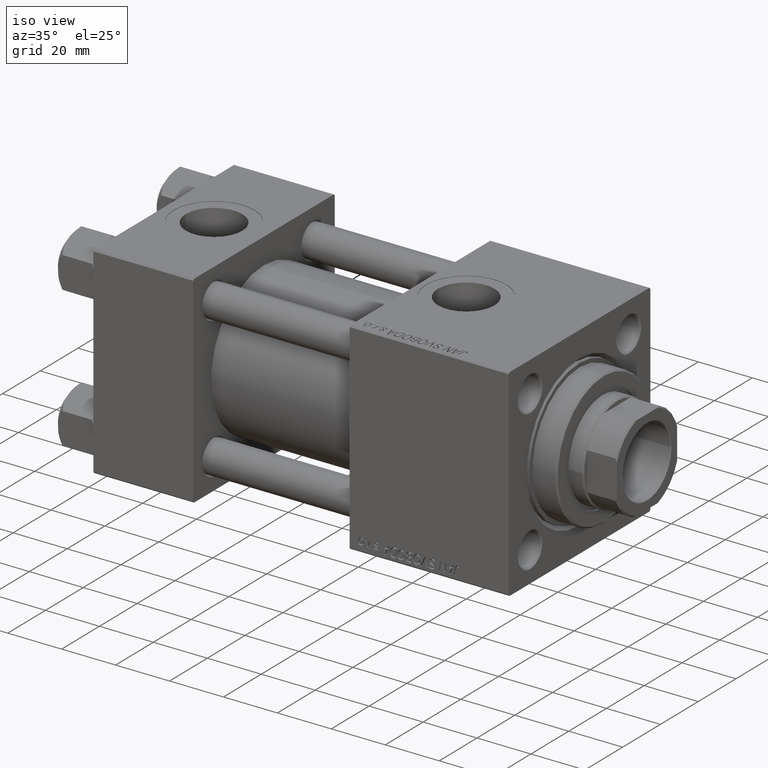
[diagram: clean part render]
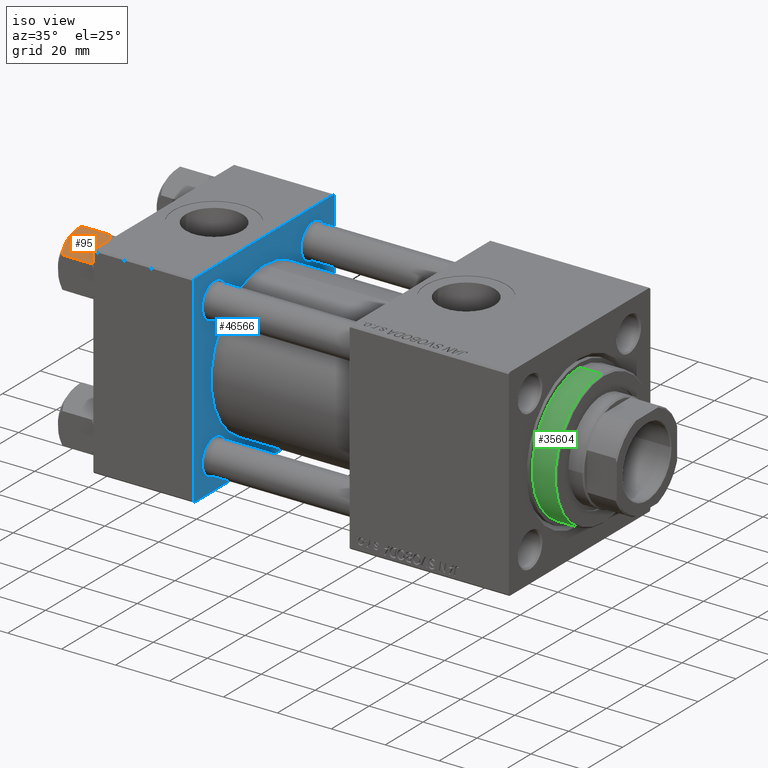
[diagram: same view with three faces highlighted in distinct colors, each labeled with its STEP entity id]
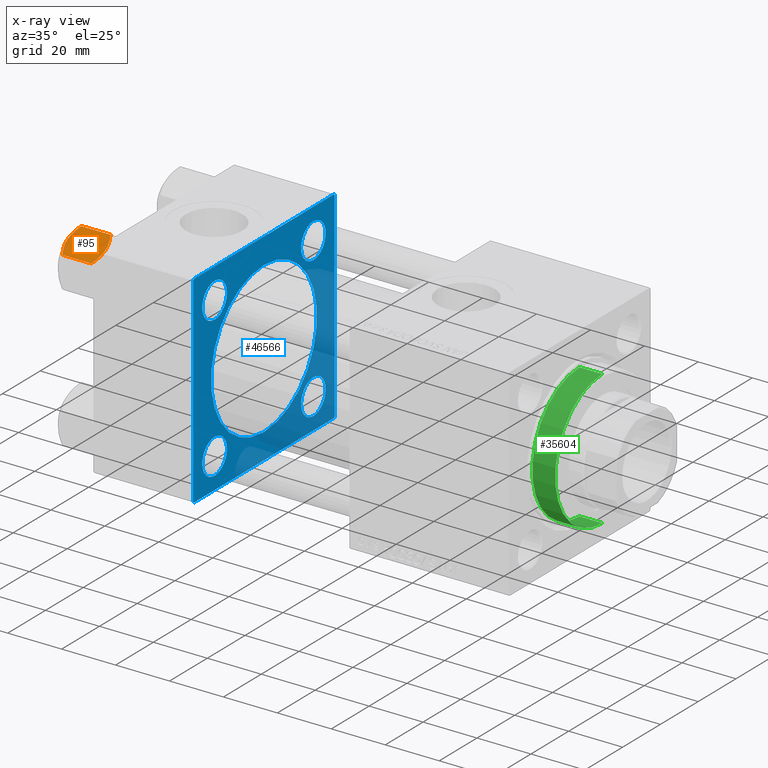
[diagram: x-ray of the same camera — body ghosted, the three highlighted faces saturated]
A machine part, iso view with three faces highlighted in distinct colors.
The next image is the same camera in x-ray (body ghosted, the three faces saturated) — at least one of them is partly hidden behind the body in this view.
Their STEP definitions:

[orange] entity #95 — the highlighted planar face has unit normal (0, 0.5, -0.866).
#95 = ADVANCED_FACE ( 'NONE', ( #42880 ), #8087, .F. ) ;
#1669 = CARTESIAN_POINT ( 'NONE',  ( -8.460569896449618099, 5.472293462311865753, 3.939644352451667145E-15 ) ) ;
#1869 = DIRECTION ( 'NONE',  ( -0.000000000000000000, -0.000000000000000000, 1.000000000000000000 ) ) ;
#2728 = B_SPLINE_CURVE_WITH_KNOTS ( 'NONE', 3,
 ( #27646, #31964, #19768, #43882, #4533, #47681, #46671, #20537 ),
 .UNSPECIFIED., .F., .F.,
 ( 4, 2, 2, 4 ),
 ( 2.544312114905218436E-07, 0.003011550106433537755, 0.004517197944044560980, 0.006022845781655582903 ),
 .UNSPECIFIED. ) ;
#2858 = VERTEX_POINT ( 'NONE', #9957 ) ;
#4380 = ORIENTED_EDGE ( 'NONE', *, *, #44015, .T. ) ;
#4533 = CARTESIAN_POINT ( 'NONE',  ( -9.729165168613649328, 3.275021996682086822, -13.80960203119265906 ) ) ;
#5190 = CARTESIAN_POINT ( 'NONE',  ( -10.69662495661650148, 1.599332489581337668, -0.7114554706434472742 ) ) ;
#6457 = VERTEX_POINT ( 'NONE', #41274 ) ;
#7927 = CARTESIAN_POINT ( 'NONE',  ( -5.809999999999997833, 10.06321519197518022, -12.44321519197518455 ) ) ;
#8087 = PLANE ( 'NONE',  #12565 ) ;
#8476 = LINE ( 'NONE', #34653, #13780 ) ;
#8515 = EDGE_LOOP ( 'NONE', ( #12254, #4380, #15575, #32130, #29017, #30263 ) ) ;
#8997 = CARTESIAN_POINT ( 'NONE',  ( -9.220295946303428636, 4.156409344131455796, 3.796401669593772542E-15 ) ) ;
#9791 = B_SPLINE_CURVE_WITH_KNOTS ( 'NONE', 3,
 ( #28836, #33141, #47617, #13581, #35967, #36458, #1669, #48605 ),
 .UNSPECIFIED., .F., .F.,
 ( 4, 2, 2, 4 ),
 ( 2.544312114902182352E-07, 0.003011550106433540791, 0.004517197944044565316, 0.006022845781655589842 ),
 .UNSPECIFIED. ) ;
#9957 = CARTESIAN_POINT ( 'NONE',  ( -8.715000000000003411, 5.031607595987592774, 0.000000000000000000 ) ) ;
#9983 = CARTESIAN_POINT ( 'NONE',  ( -11.61999999999999922, 6.270720075409452187E-15, -1.556784808024810562 ) ) ;
#10736 = VERTEX_POINT ( 'NONE', #35910 ) ;
#11151 = CARTESIAN_POINT ( 'NONE',  ( -5.809999999999997833, 10.06321519197518022, -12.44321519197518455 ) ) ;
#11492 = CARTESIAN_POINT ( 'NONE',  ( -6.265018354709776638, 9.275100283241455301, -12.89823354668505218 ) ) ;
#12254 = ORIENTED_EDGE ( 'NONE', *, *, #37616, .F. ) ;
#12565 = AXIS2_PLACEMENT_3D ( 'NONE', #27655, #25583, #37014 ) ;
#13581 = CARTESIAN_POINT ( 'NONE',  ( -7.455303369716805406, 7.213466161761384221, -0.3002673809867362764 ) ) ;
#13780 = VECTOR ( 'NONE', #23468, 1000.000000000000000 ) ;
#14001 = VECTOR ( 'NONE', #1869, 1000.000000000000000 ) ;
#15575 = ORIENTED_EDGE ( 'NONE', *, *, #17558, .F. ) ;
#16220 = B_SPLINE_CURVE_WITH_KNOTS ( 'NONE', 3,
 ( #44526, #17605, #31049, #30794, #11492, #7927 ),
 .UNSPECIFIED., .F., .F.,
 ( 4, 2, 4 ),
 ( 0.006022845781655582903, 0.009013049135303629819, 0.01200325248895167847 ),
 .UNSPECIFIED. ) ;
#17532 = VERTEX_POINT ( 'NONE', #24500 ) ;
#17558 = EDGE_CURVE ( 'NONE', #2858, #17532, #35589, .T. ) ;
#17605 = CARTESIAN_POINT ( 'NONE',  ( -8.209704053696567527, 5.906805847843725310, -14.00000000000000533 ) ) ;
#18764 = VERTEX_POINT ( 'NONE', #21993 ) ;
#19768 = CARTESIAN_POINT ( 'NONE',  ( -10.69859855102501101, 1.595914123792268491, -13.28585617404753627 ) ) ;
#20537 = CARTESIAN_POINT ( 'NONE',  ( -8.715000000000001634, 5.031607595987591885, -14.00000000000000000 ) ) ;
#20690 = CARTESIAN_POINT ( 'NONE',  ( -11.16498164529022219, 0.7881149087337359083, -1.101766453314949379 ) ) ;
#21166 = LINE ( 'NONE', #36659, #14001 ) ;
#21993 = CARTESIAN_POINT ( 'NONE',  ( -5.809999999999997833, 10.06321519197518022, -1.556784808024814115 ) ) ;
#23468 = DIRECTION ( 'NONE',  ( -0.000000000000000000, -0.000000000000000000, 1.000000000000000000 ) ) ;
#24500 = CARTESIAN_POINT ( 'NONE',  ( -11.61999999999999922, 6.270720075409452187E-15, -1.556784808024810562 ) ) ;
#25583 = DIRECTION ( 'NONE',  ( 0.8660254037844385966, -0.5000000000000002220, 0.000000000000000000 ) ) ;
#27646 = CARTESIAN_POINT ( 'NONE',  ( -11.61999999999999922, 6.270720075510426383E-15, -12.44321519197518811 ) ) ;
#27655 = CARTESIAN_POINT ( 'NONE',  ( -11.61999999999999922, 6.288644352490894150E-15, -14.00000000000000000 ) ) ;
#28308 = CARTESIAN_POINT ( 'NONE',  ( -8.715000000000003411, 5.031607595987592774, 0.000000000000000000 ) ) ;
#28836 = CARTESIAN_POINT ( 'NONE',  ( -5.809999999999997833, 10.06321519197518022, -1.556784808024814115 ) ) ;
#29017 = ORIENTED_EDGE ( 'NONE', *, *, #33534, .F. ) ;
#30263 = ORIENTED_EDGE ( 'NONE', *, *, #35167, .F. ) ;
#30794 = CARTESIAN_POINT ( 'NONE',  ( -6.733375043383492020, 8.463882702393842550, -13.28854452935654962 ) ) ;
#30935 = EDGE_CURVE ( 'NONE', #18764, #2858, #9791, .T. ) ;
#31049 = CARTESIAN_POINT ( 'NONE',  ( -7.713000053756302599, 6.767122412062954062, -13.84547602999601601 ) ) ;
#31964 = CARTESIAN_POINT ( 'NONE',  ( -11.16445427487471598, 0.7890283410878030645, -12.89876091710047312 ) ) ;
#32130 = ORIENTED_EDGE ( 'NONE', *, *, #30935, .F. ) ;
#32976 = VERTEX_POINT ( 'NONE', #11151 ) ;
#33141 = CARTESIAN_POINT ( 'NONE',  ( -6.265545725125282850, 9.274186850887385702, -1.101239082899533539 ) ) ;
#33534 = EDGE_CURVE ( 'NONE', #32976, #18764, #8476, .T. ) ;
#34653 = CARTESIAN_POINT ( 'NONE',  ( -5.809999999999997833, 10.06321519197518022, -14.00000000000000000 ) ) ;
#35167 = EDGE_CURVE ( 'NONE', #10736, #32976, #16220, .T. ) ;
#35589 = B_SPLINE_CURVE_WITH_KNOTS ( 'NONE', 3,
 ( #28308, #8997, #39990, #5190, #20690, #9983 ),
 .UNSPECIFIED., .F., .F.,
 ( 4, 2, 4 ),
 ( 0.006022845781655589842, 0.009013049135303633289, 0.01200325248895167674 ),
 .UNSPECIFIED. ) ;
#35910 = CARTESIAN_POINT ( 'NONE',  ( -8.715000000000001634, 5.031607595987591885, -14.00000000000000000 ) ) ;
#35967 = CARTESIAN_POINT ( 'NONE',  ( -7.700834831386344170, 6.788193195293096949, -0.1903979688073401122 ) ) ;
#36458 = CARTESIAN_POINT ( 'NONE',  ( -8.202333004087897450, 5.919572880271055659, -0.03994118060690620559 ) ) ;
#36659 = CARTESIAN_POINT ( 'NONE',  ( -11.61999999999999922, 6.288644352490894150E-15, -14.00000000000000000 ) ) ;
#37014 = DIRECTION ( 'NONE',  ( 0.5000000000000001110, 0.8660254037844384856, 0.000000000000000000 ) ) ;
#37616 = EDGE_CURVE ( 'NONE', #6457, #10736, #2728, .T. ) ;
#39990 = CARTESIAN_POINT ( 'NONE',  ( -9.716999946243694453, 3.296092779912229265, -0.1545239700039824915 ) ) ;
#41274 = CARTESIAN_POINT ( 'NONE',  ( -11.61999999999999922, 6.270720075510426383E-15, -12.44321519197518811 ) ) ;
#42880 = FACE_OUTER_BOUND ( 'NONE', #8515, .T. ) ;
#43882 = CARTESIAN_POINT ( 'NONE',  ( -9.974696630283190757, 2.849749030213795109, -13.69973261901325934 ) ) ;
#44015 = EDGE_CURVE ( 'NONE', #6457, #17532, #21166, .T. ) ;
#44526 = CARTESIAN_POINT ( 'NONE',  ( -8.715000000000001634, 5.031607595987591885, -14.00000000000000000 ) ) ;
#46671 = CARTESIAN_POINT ( 'NONE',  ( -8.969430103550378064, 4.590921729663314466, -14.00000000000000178 ) ) ;
#47617 = CARTESIAN_POINT ( 'NONE',  ( -6.731401448974986934, 8.467301068182916168, -0.7141438259524646170 ) ) ;
#47681 = CARTESIAN_POINT ( 'NONE',  ( -9.227666995912096937, 4.143642311704127223, -13.96005881939308857 ) ) ;
#48605 = CARTESIAN_POINT ( 'NONE',  ( -8.715000000000003411, 5.031607595987592774, 0.000000000000000000 ) ) ;

[blue] entity #46566 — the highlighted planar face has unit normal (-1, 0, 0).
#431 = EDGE_CURVE ( 'NONE', #7742, #22901, #8538, .T. ) ;
#444 = VERTEX_POINT ( 'NONE', #17409 ) ;
#640 = CIRCLE ( 'NONE', #46827, 28.00000000000000000 ) ;
#882 = FACE_BOUND ( 'NONE', #39963, .T. ) ;
#985 = CARTESIAN_POINT ( 'NONE',  ( 37.00000000000000000, -26.14999999999999147, -32.65000000000001279 ) ) ;
#1140 = FACE_BOUND ( 'NONE', #43377, .T. ) ;
#2023 = CARTESIAN_POINT ( 'NONE',  ( 37.00000000000000000, -2.602085213965210642E-15, 28.00000000000000000 ) ) ;
#2506 = ORIENTED_EDGE ( 'NONE', *, *, #12130, .T. ) ;
#2991 = CARTESIAN_POINT ( 'NONE',  ( 37.00000000000000000, 37.49999999999999289, 37.50000000000000000 ) ) ;
#3331 = VECTOR ( 'NONE', #5783, 1000.000000000000114 ) ;
#4697 = DIRECTION ( 'NONE',  ( 0.000000000000000000, 0.000000000000000000, 1.000000000000000000 ) ) ;
#5191 = FACE_BOUND ( 'NONE', #45787, .T. ) ;
#5203 = DIRECTION ( 'NONE',  ( 0.000000000000000000, 0.000000000000000000, 1.000000000000000000 ) ) ;
#5411 = ORIENTED_EDGE ( 'NONE', *, *, #15389, .T. ) ;
#5435 = PLANE ( 'NONE',  #8376 ) ;
#5440 = CARTESIAN_POINT ( 'NONE',  ( 37.00000000000000000, 26.14999999999999858, -26.15000000000000213 ) ) ;
#5783 = DIRECTION ( 'NONE',  ( 0.000000000000000000, -0.7071067811865474617, 0.7071067811865474617 ) ) ;
#6264 = ORIENTED_EDGE ( 'NONE', *, *, #25198, .T. ) ;
#6454 = EDGE_CURVE ( 'NONE', #10023, #37557, #33082, .T. ) ;
#6649 = VERTEX_POINT ( 'NONE', #38223 ) ;
#6843 = EDGE_CURVE ( 'NONE', #49670, #26232, #640, .T. ) ;
#7002 = CARTESIAN_POINT ( 'NONE',  ( 37.00000000000000000, 26.14999999999999858, 26.15000000000000213 ) ) ;
#7108 = DIRECTION ( 'NONE',  ( 1.000000000000000000, -0.000000000000000000, 0.000000000000000000 ) ) ;
#7606 = DIRECTION ( 'NONE',  ( -0.000000000000000000, 0.7071067811865474617, 0.7071067811865474617 ) ) ;
#7649 = EDGE_CURVE ( 'NONE', #48389, #38305, #25786, .T. ) ;
#7742 = VERTEX_POINT ( 'NONE', #21439 ) ;
#8330 = VERTEX_POINT ( 'NONE', #14187 ) ;
#8376 = AXIS2_PLACEMENT_3D ( 'NONE', #12305, #35421, #23745 ) ;
#8538 = CIRCLE ( 'NONE', #32079, 6.500000000000008882 ) ;
#9067 = AXIS2_PLACEMENT_3D ( 'NONE', #46834, #23756, #5203 ) ;
#9072 = AXIS2_PLACEMENT_3D ( 'NONE', #15599, #27290, #42017 ) ;
#9291 = DIRECTION ( 'NONE',  ( -1.000000000000000000, 0.000000000000000000, -0.000000000000000000 ) ) ;
#10023 = VERTEX_POINT ( 'NONE', #46674 ) ;
#10250 = ORIENTED_EDGE ( 'NONE', *, *, #431, .T. ) ;
#10409 = LINE ( 'NONE', #37592, #13250 ) ;
#10578 = AXIS2_PLACEMENT_3D ( 'NONE', #47275, #24439, #39929 ) ;
#10693 = VECTOR ( 'NONE', #34601, 1000.000000000000000 ) ;
#11221 = CARTESIAN_POINT ( 'NONE',  ( 37.00000000000000000, -37.00000000000002132, -37.50000000000000711 ) ) ;
#11407 = VERTEX_POINT ( 'NONE', #40957 ) ;
#11511 = CARTESIAN_POINT ( 'NONE',  ( 37.00000000000000000, 37.49999999999999289, 37.50000000000000000 ) ) ;
#11544 = ORIENTED_EDGE ( 'NONE', *, *, #25831, .T. ) ;
#12130 = EDGE_CURVE ( 'NONE', #8330, #45734, #41331, .T. ) ;
#12154 = VECTOR ( 'NONE', #14775, 1000.000000000000000 ) ;
#12305 = CARTESIAN_POINT ( 'NONE',  ( 37.00000000000000000, 0.000000000000000000, 0.000000000000000000 ) ) ;
#12855 = VECTOR ( 'NONE', #38028, 1000.000000000000000 ) ;
#13250 = VECTOR ( 'NONE', #7606, 1000.000000000000114 ) ;
#13359 = DIRECTION ( 'NONE',  ( -1.000000000000000000, 0.000000000000000000, -0.000000000000000000 ) ) ;
#13540 = CARTESIAN_POINT ( 'NONE',  ( 37.00000000000000000, 26.14999999999999858, 32.65000000000004121 ) ) ;
#13813 = CIRCLE ( 'NONE', #21114, 6.500000000000030198 ) ;
#14187 = CARTESIAN_POINT ( 'NONE',  ( 37.00000000000000000, 36.99999999999999289, 37.50000000000000000 ) ) ;
#14477 = DIRECTION ( 'NONE',  ( 0.000000000000000000, 0.000000000000000000, 1.000000000000000000 ) ) ;
#14775 = DIRECTION ( 'NONE',  ( 0.000000000000000000, -1.000000000000000000, -9.251858538542972814E-17 ) ) ;
#14989 = CARTESIAN_POINT ( 'NONE',  ( 37.00000000000000000, -37.50000000000000711, 36.99999999999999289 ) ) ;
#15389 = EDGE_CURVE ( 'NONE', #27907, #11407, #16519, .T. ) ;
#15599 = CARTESIAN_POINT ( 'NONE',  ( 37.00000000000000000, -26.14999999999999147, -26.15000000000000924 ) ) ;
#16263 = EDGE_CURVE ( 'NONE', #38305, #48389, #13813, .T. ) ;
#16367 = FACE_OUTER_BOUND ( 'NONE', #47833, .T. ) ;
#16519 = LINE ( 'NONE', #43432, #29980 ) ;
#16854 = ORIENTED_EDGE ( 'NONE', *, *, #22324, .T. ) ;
#17409 = CARTESIAN_POINT ( 'NONE',  ( 37.00000000000000000, 37.49999999999999289, -36.99999999999998579 ) ) ;
#17465 = LINE ( 'NONE', #39840, #3331 ) ;
#17649 = CARTESIAN_POINT ( 'NONE',  ( 37.00000000000000000, -26.14999999999999147, 26.15000000000000924 ) ) ;
#17923 = EDGE_CURVE ( 'NONE', #26232, #49670, #40603, .T. ) ;
#18187 = DIRECTION ( 'NONE',  ( -1.000000000000000000, 0.000000000000000000, -0.000000000000000000 ) ) ;
#18623 = DIRECTION ( 'NONE',  ( 0.000000000000000000, 0.000000000000000000, -1.000000000000000000 ) ) ;
#18747 = ORIENTED_EDGE ( 'NONE', *, *, #6454, .T. ) ;
#18912 = FACE_BOUND ( 'NONE', #30390, .T. ) ;
#20185 = CARTESIAN_POINT ( 'NONE',  ( 37.00000000000000000, -37.00000000000002132, -37.50000000000000711 ) ) ;
#21090 = EDGE_CURVE ( 'NONE', #37557, #10023, #44762, .T. ) ;
#21114 = AXIS2_PLACEMENT_3D ( 'NONE', #39530, #13359, #32676 ) ;
#21253 = VERTEX_POINT ( 'NONE', #13540 ) ;
#21439 = CARTESIAN_POINT ( 'NONE',  ( 37.00000000000000000, -26.14999999999999147, 32.65000000000001990 ) ) ;
#21623 = DIRECTION ( 'NONE',  ( -0.000000000000000000, -0.7071067811865474617, -0.7071067811865474617 ) ) ;
#22324 = EDGE_CURVE ( 'NONE', #25213, #8330, #17465, .T. ) ;
#22426 = ORIENTED_EDGE ( 'NONE', *, *, #43092, .T. ) ;
#22901 = VERTEX_POINT ( 'NONE', #34838 ) ;
#23687 = DIRECTION ( 'NONE',  ( -1.000000000000000000, 0.000000000000000000, -0.000000000000000000 ) ) ;
#23745 = DIRECTION ( 'NONE',  ( -0.000000000000000000, 0.000000000000000000, 1.000000000000000000 ) ) ;
#23756 = DIRECTION ( 'NONE',  ( -1.000000000000000000, 0.000000000000000000, -0.000000000000000000 ) ) ;
#24327 = CARTESIAN_POINT ( 'NONE',  ( 37.00000000000000000, 26.14999999999999858, -19.64999999999997371 ) ) ;
#24396 = DIRECTION ( 'NONE',  ( 0.000000000000000000, 9.251858538542971581E-17, -1.000000000000000000 ) ) ;
#24439 = DIRECTION ( 'NONE',  ( 1.000000000000000000, -0.000000000000000000, 0.000000000000000000 ) ) ;
#25178 = VERTEX_POINT ( 'NONE', #20185 ) ;
#25198 = EDGE_CURVE ( 'NONE', #6649, #21253, #30963, .T. ) ;
#25213 = VERTEX_POINT ( 'NONE', #47092 ) ;
#25681 = LINE ( 'NONE', #48527, #47414 ) ;
#25786 = CIRCLE ( 'NONE', #33912, 6.500000000000030198 ) ;
#25831 = EDGE_CURVE ( 'NONE', #21253, #6649, #30195, .T. ) ;
#26107 = ORIENTED_EDGE ( 'NONE', *, *, #33800, .F. ) ;
#26232 = VERTEX_POINT ( 'NONE', #38935 ) ;
#26623 = ORIENTED_EDGE ( 'NONE', *, *, #49186, .T. ) ;
#26748 = ORIENTED_EDGE ( 'NONE', *, *, #46114, .T. ) ;
#27290 = DIRECTION ( 'NONE',  ( -1.000000000000000000, 0.000000000000000000, -0.000000000000000000 ) ) ;
#27687 = CARTESIAN_POINT ( 'NONE',  ( 37.00000000000000000, 36.99999999999997868, -37.50000000000000000 ) ) ;
#27907 = VERTEX_POINT ( 'NONE', #14989 ) ;
#28060 = FACE_BOUND ( 'NONE', #30269, .T. ) ;
#29855 = CARTESIAN_POINT ( 'NONE',  ( 37.00000000000000000, -26.14999999999999147, -26.15000000000000924 ) ) ;
#29980 = VECTOR ( 'NONE', #24396, 1000.000000000000000 ) ;
#30052 = VECTOR ( 'NONE', #18623, 1000.000000000000000 ) ;
#30195 = CIRCLE ( 'NONE', #30997, 6.500000000000030198 ) ;
#30269 = EDGE_LOOP ( 'NONE', ( #6264, #11544 ) ) ;
#30304 = CIRCLE ( 'NONE', #47338, 6.500000000000008882 ) ;
#30390 = EDGE_LOOP ( 'NONE', ( #33305, #18747 ) ) ;
#30963 = CIRCLE ( 'NONE', #9067, 6.500000000000030198 ) ;
#30997 = AXIS2_PLACEMENT_3D ( 'NONE', #7002, #18187, #37242 ) ;
#32079 = AXIS2_PLACEMENT_3D ( 'NONE', #17649, #9291, #32414 ) ;
#32347 = ORIENTED_EDGE ( 'NONE', *, *, #17923, .F. ) ;
#32414 = DIRECTION ( 'NONE',  ( 0.000000000000000000, 0.000000000000000000, 1.000000000000000000 ) ) ;
#32676 = DIRECTION ( 'NONE',  ( 0.000000000000000000, 0.000000000000000000, 1.000000000000000000 ) ) ;
#32818 = ORIENTED_EDGE ( 'NONE', *, *, #6843, .F. ) ;
#33082 = CIRCLE ( 'NONE', #37097, 6.500000000000002665 ) ;
#33305 = ORIENTED_EDGE ( 'NONE', *, *, #21090, .T. ) ;
#33348 = LINE ( 'NONE', #37644, #12154 ) ;
#33429 = DIRECTION ( 'NONE',  ( -1.000000000000000000, 0.000000000000000000, -0.000000000000000000 ) ) ;
#33800 = EDGE_CURVE ( 'NONE', #47402, #25178, #33348, .T. ) ;
#33912 = AXIS2_PLACEMENT_3D ( 'NONE', #5440, #44042, #4697 ) ;
#34553 = CARTESIAN_POINT ( 'NONE',  ( 37.00000000000000000, -2.602085213965210642E-15, 0.000000000000000000 ) ) ;
#34589 = ORIENTED_EDGE ( 'NONE', *, *, #39481, .F. ) ;
#34601 = DIRECTION ( 'NONE',  ( 0.000000000000000000, 0.7071067811865524577, -0.7071067811865426878 ) ) ;
#34838 = CARTESIAN_POINT ( 'NONE',  ( 37.00000000000000000, -26.14999999999999147, 19.65000000000000213 ) ) ;
#35421 = DIRECTION ( 'NONE',  ( -1.000000000000000000, 0.000000000000000000, -0.000000000000000000 ) ) ;
#35878 = CARTESIAN_POINT ( 'NONE',  ( 37.00000000000000000, -26.14999999999999147, 26.15000000000000924 ) ) ;
#37097 = AXIS2_PLACEMENT_3D ( 'NONE', #29855, #33429, #48891 ) ;
#37242 = DIRECTION ( 'NONE',  ( 0.000000000000000000, 0.000000000000000000, 1.000000000000000000 ) ) ;
#37557 = VERTEX_POINT ( 'NONE', #985 ) ;
#37592 = CARTESIAN_POINT ( 'NONE',  ( 37.00000000000000000, 37.49999999999999289, -36.99999999999998579 ) ) ;
#37644 = CARTESIAN_POINT ( 'NONE',  ( 37.00000000000000000, 37.49999999999999289, -37.50000000000000000 ) ) ;
#38028 = DIRECTION ( 'NONE',  ( 0.000000000000000000, -1.000000000000000000, -9.251858538542971581E-17 ) ) ;
#38223 = CARTESIAN_POINT ( 'NONE',  ( 37.00000000000000000, 26.14999999999999858, 19.64999999999997016 ) ) ;
#38305 = VERTEX_POINT ( 'NONE', #43048 ) ;
#38401 = LINE ( 'NONE', #11221, #10693 ) ;
#38935 = CARTESIAN_POINT ( 'NONE',  ( 37.00000000000000000, 8.269258236473776482E-16, -28.00000000000000000 ) ) ;
#39481 = EDGE_CURVE ( 'NONE', #25213, #444, #49840, .T. ) ;
#39530 = CARTESIAN_POINT ( 'NONE',  ( 37.00000000000000000, 26.14999999999999858, -26.15000000000000213 ) ) ;
#39840 = CARTESIAN_POINT ( 'NONE',  ( 37.00000000000000000, 36.99999999999999289, 37.50000000000000000 ) ) ;
#39929 = DIRECTION ( 'NONE',  ( 0.000000000000000000, 0.000000000000000000, 1.000000000000000000 ) ) ;
#39963 = EDGE_LOOP ( 'NONE', ( #41691, #45355 ) ) ;
#40603 = CIRCLE ( 'NONE', #10578, 28.00000000000000000 ) ;
#40957 = CARTESIAN_POINT ( 'NONE',  ( 37.00000000000000000, -37.50000000000000000, -37.00000000000003553 ) ) ;
#41331 = LINE ( 'NONE', #2991, #12855 ) ;
#41691 = ORIENTED_EDGE ( 'NONE', *, *, #16263, .T. ) ;
#42017 = DIRECTION ( 'NONE',  ( 0.000000000000000000, 0.000000000000000000, 1.000000000000000000 ) ) ;
#43048 = CARTESIAN_POINT ( 'NONE',  ( 37.00000000000000000, 26.14999999999999858, -32.65000000000003411 ) ) ;
#43092 = EDGE_CURVE ( 'NONE', #11407, #25178, #38401, .T. ) ;
#43377 = EDGE_LOOP ( 'NONE', ( #32818, #32347 ) ) ;
#43432 = CARTESIAN_POINT ( 'NONE',  ( 37.00000000000000000, -37.50000000000000711, 37.49999999999999289 ) ) ;
#44042 = DIRECTION ( 'NONE',  ( -1.000000000000000000, 0.000000000000000000, -0.000000000000000000 ) ) ;
#44762 = CIRCLE ( 'NONE', #9072, 6.500000000000002665 ) ;
#45355 = ORIENTED_EDGE ( 'NONE', *, *, #7649, .T. ) ;
#45734 = VERTEX_POINT ( 'NONE', #46008 ) ;
#45787 = EDGE_LOOP ( 'NONE', ( #48867, #10250 ) ) ;
#46008 = CARTESIAN_POINT ( 'NONE',  ( 37.00000000000000000, -37.00000000000000711, 37.49999999999999289 ) ) ;
#46114 = EDGE_CURVE ( 'NONE', #47402, #444, #10409, .T. ) ;
#46566 = ADVANCED_FACE ( 'NONE', ( #18912, #882, #5191, #28060, #1140, #16367 ), #5435, .F. ) ;
#46674 = CARTESIAN_POINT ( 'NONE',  ( 37.00000000000000000, -26.14999999999999147, -19.65000000000000924 ) ) ;
#46827 = AXIS2_PLACEMENT_3D ( 'NONE', #34553, #7108, #14477 ) ;
#46834 = CARTESIAN_POINT ( 'NONE',  ( 37.00000000000000000, 26.14999999999999858, 26.15000000000000213 ) ) ;
#46974 = EDGE_CURVE ( 'NONE', #22901, #7742, #30304, .T. ) ;
#47092 = CARTESIAN_POINT ( 'NONE',  ( 37.00000000000000000, 37.49999999999999289, 37.00000000000000000 ) ) ;
#47275 = CARTESIAN_POINT ( 'NONE',  ( 37.00000000000000000, -2.602085213965210642E-15, 0.000000000000000000 ) ) ;
#47338 = AXIS2_PLACEMENT_3D ( 'NONE', #35878, #23687, #47528 ) ;
#47402 = VERTEX_POINT ( 'NONE', #27687 ) ;
#47414 = VECTOR ( 'NONE', #21623, 1000.000000000000114 ) ;
#47528 = DIRECTION ( 'NONE',  ( 0.000000000000000000, 0.000000000000000000, 1.000000000000000000 ) ) ;
#47833 = EDGE_LOOP ( 'NONE', ( #26107, #26748, #34589, #16854, #2506, #26623, #5411, #22426 ) ) ;
#48389 = VERTEX_POINT ( 'NONE', #24327 ) ;
#48527 = CARTESIAN_POINT ( 'NONE',  ( 37.00000000000000000, -37.50000000000000711, 36.99999999999999289 ) ) ;
#48867 = ORIENTED_EDGE ( 'NONE', *, *, #46974, .T. ) ;
#48891 = DIRECTION ( 'NONE',  ( 0.000000000000000000, 0.000000000000000000, 1.000000000000000000 ) ) ;
#49186 = EDGE_CURVE ( 'NONE', #45734, #27907, #25681, .T. ) ;
#49670 = VERTEX_POINT ( 'NONE', #2023 ) ;
#49840 = LINE ( 'NONE', #11511, #30052 ) ;

[green] entity #35604 — the highlighted cylindrical surface (partial cylindrical patch) has radius 25 mm, axis along (-1, -0, -0).
#3229 = DIRECTION ( 'NONE',  ( -0.000000000000000000, -0.000000000000000000, -1.000000000000000000 ) ) ;
#3293 = EDGE_LOOP ( 'NONE', ( #41583, #13177, #13315, #45721 ) ) ;
#3716 = CARTESIAN_POINT ( 'NONE',  ( 25.00000000000000000, 3.061616997868383043E-15, 37.20000000000001705 ) ) ;
#4734 = VECTOR ( 'NONE', #44162, 1000.000000000000000 ) ;
#7085 = EDGE_CURVE ( 'NONE', #40840, #28724, #9868, .T. ) ;
#8256 = CARTESIAN_POINT ( 'NONE',  ( 25.00000000000000000, 3.061616997868383043E-15, 28.69999999999999929 ) ) ;
#9868 = LINE ( 'NONE', #20817, #4734 ) ;
#13177 = ORIENTED_EDGE ( 'NONE', *, *, #25083, .T. ) ;
#13315 = ORIENTED_EDGE ( 'NONE', *, *, #43484, .T. ) ;
#13625 = CARTESIAN_POINT ( 'NONE',  ( 0.000000000000000000, 0.000000000000000000, 37.69999999999999574 ) ) ;
#13709 = CIRCLE ( 'NONE', #43729, 25.00000000000000000 ) ;
#14240 = EDGE_CURVE ( 'NONE', #16575, #28724, #13709, .T. ) ;
#16575 = VERTEX_POINT ( 'NONE', #44025 ) ;
#17237 = VECTOR ( 'NONE', #3229, 1000.000000000000000 ) ;
#17857 = DIRECTION ( 'NONE',  ( 0.000000000000000000, 0.000000000000000000, 1.000000000000000000 ) ) ;
#18425 = CYLINDRICAL_SURFACE ( 'NONE', #30825, 25.00000000000000000 ) ;
#18460 = CARTESIAN_POINT ( 'NONE',  ( -25.00000000000000000, 0.000000000000000000, 37.69999999999999574 ) ) ;
#20425 = CIRCLE ( 'NONE', #48781, 25.00000000000000000 ) ;
#20817 = CARTESIAN_POINT ( 'NONE',  ( 25.00000000000000000, 3.061616997868383043E-15, 37.69999999999999574 ) ) ;
#22284 = LINE ( 'NONE', #18460, #17237 ) ;
#23497 = CARTESIAN_POINT ( 'NONE',  ( 0.000000000000000000, 0.000000000000000000, 37.20000000000001705 ) ) ;
#25083 = EDGE_CURVE ( 'NONE', #40840, #48393, #20425, .T. ) ;
#25981 = DIRECTION ( 'NONE',  ( 1.000000000000000000, 0.000000000000000000, 0.000000000000000000 ) ) ;
#28135 = CARTESIAN_POINT ( 'NONE',  ( -25.00000000000000000, 0.000000000000000000, 37.20000000000001705 ) ) ;
#28724 = VERTEX_POINT ( 'NONE', #8256 ) ;
#29053 = CARTESIAN_POINT ( 'NONE',  ( 0.000000000000000000, 0.000000000000000000, 28.69999999999999929 ) ) ;
#29122 = DIRECTION ( 'NONE',  ( -1.000000000000000000, 0.000000000000000000, 0.000000000000000000 ) ) ;
#30825 = AXIS2_PLACEMENT_3D ( 'NONE', #13625, #49143, #29122 ) ;
#35604 = ADVANCED_FACE ( 'NONE', ( #45337 ), #18425, .T. ) ;
#38737 = DIRECTION ( 'NONE',  ( 1.000000000000000000, 0.000000000000000000, 0.000000000000000000 ) ) ;
#40840 = VERTEX_POINT ( 'NONE', #3716 ) ;
#41583 = ORIENTED_EDGE ( 'NONE', *, *, #7085, .F. ) ;
#43484 = EDGE_CURVE ( 'NONE', #48393, #16575, #22284, .T. ) ;
#43729 = AXIS2_PLACEMENT_3D ( 'NONE', #29053, #17857, #25981 ) ;
#44025 = CARTESIAN_POINT ( 'NONE',  ( -25.00000000000000000, 0.000000000000000000, 28.69999999999999929 ) ) ;
#44162 = DIRECTION ( 'NONE',  ( -0.000000000000000000, -0.000000000000000000, -1.000000000000000000 ) ) ;
#45337 = FACE_OUTER_BOUND ( 'NONE', #3293, .T. ) ;
#45585 = DIRECTION ( 'NONE',  ( 0.000000000000000000, 0.000000000000000000, -1.000000000000000000 ) ) ;
#45721 = ORIENTED_EDGE ( 'NONE', *, *, #14240, .T. ) ;
#48393 = VERTEX_POINT ( 'NONE', #28135 ) ;
#48781 = AXIS2_PLACEMENT_3D ( 'NONE', #23497, #45585, #38737 ) ;
#49143 = DIRECTION ( 'NONE',  ( -0.000000000000000000, -0.000000000000000000, -1.000000000000000000 ) ) ;